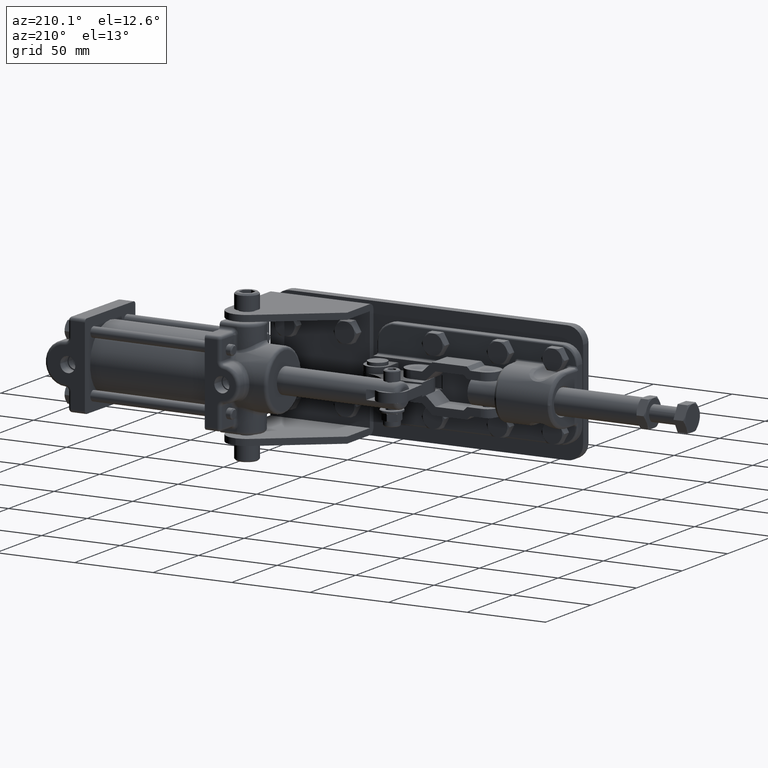
[diagram: clean part render]
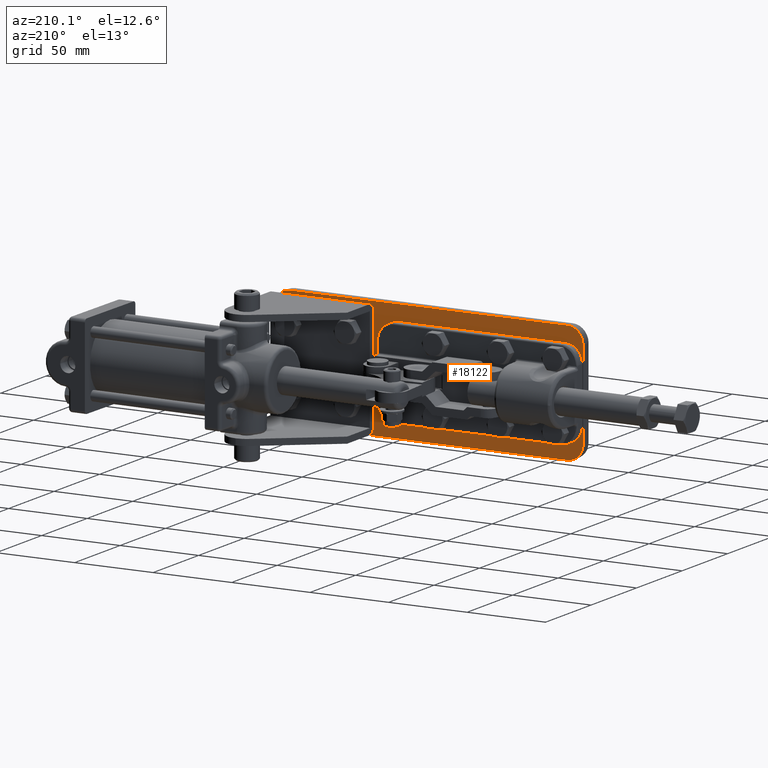
[diagram: same view with one face highlighted and labeled with its STEP entity id]
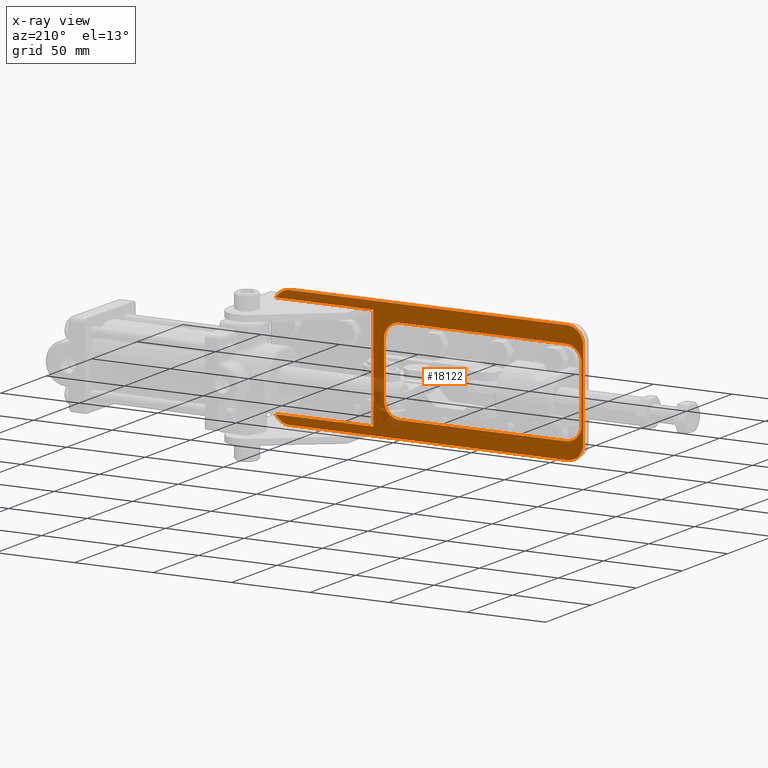
[diagram: x-ray of the same camera — body ghosted, the highlighted face saturated]
A machine part, auxiliary view. The second image highlights one B-rep face of the part: STEP entity #18122.
The next image is the same camera in x-ray: the body ghosted, the highlighted face saturated — about 5% of this face is hidden behind the body in this view.
In plain terms, the highlighted planar face has unit normal (0, 1, 0).
Its self-contained STEP definition (entity closure, byte-faithful):
#80 = DIRECTION ( 'NONE',  ( 0.0000000000000000000, 0.0000000000000000000, 1.000000000000000000 ) ) ;
#103 = LINE ( 'NONE', #14521, #6427 ) ;
#821 = DIRECTION ( 'NONE',  ( 0.0000000000000000000, 1.000000000000000000, -0.0000000000000000000 ) ) ;
#927 = DIRECTION ( 'NONE',  ( 0.0000000000000000000, -0.0000000000000000000, 1.000000000000000000 ) ) ;
#1125 = DIRECTION ( 'NONE',  ( 4.938714522353910200E-016, 0.0000000000000000000, 1.000000000000000000 ) ) ;
#1734 = ORIENTED_EDGE ( 'NONE', *, *, #2351, .T. ) ;
#1827 = EDGE_CURVE ( 'NONE', #13067, #2107, #10097, .T. ) ;
#1903 = CARTESIAN_POINT ( 'NONE',  ( 126.8000000000000000, 0.0000000000000000000, -17.49999999999998900 ) ) ;
#1996 = CARTESIAN_POINT ( 'NONE',  ( 195.7228378409781200, 0.0000000000000000000, -32.99000000000001600 ) ) ;
#2107 = VERTEX_POINT ( 'NONE', #11629 ) ;
#2351 = EDGE_CURVE ( 'NONE', #2107, #11342, #10482, .T. ) ;
#2769 = CARTESIAN_POINT ( 'NONE',  ( 11.00000000000000000, 0.0000000000000000000, -17.49999999999998900 ) ) ;
#2960 = ORIENTED_EDGE ( 'NONE', *, *, #26257, .T. ) ;
#3127 = CIRCLE ( 'NONE', #9132, 9.999999999999998200 ) ;
#3481 = VECTOR ( 'NONE', #8917, 1000.000000000000000 ) ;
#4372 = VERTEX_POINT ( 'NONE', #4971 ) ;
#4681 = VERTEX_POINT ( 'NONE', #22102 ) ;
#4827 = DIRECTION ( 'NONE',  ( 0.0000000000000000000, 1.000000000000000000, 0.0000000000000000000 ) ) ;
#4874 = ORIENTED_EDGE ( 'NONE', *, *, #23856, .T. ) ;
#4971 = CARTESIAN_POINT ( 'NONE',  ( 0.0000000000000000000, 0.0000000000000000000, -28.09999999999991600 ) ) ;
#5093 = DIRECTION ( 'NONE',  ( -1.000000000000000000, -0.0000000000000000000, -0.0000000000000000000 ) ) ;
#5098 = CARTESIAN_POINT ( 'NONE',  ( 10.40684079779927100, 0.0000000000000000000, 27.48239260702788300 ) ) ;
#5511 = DIRECTION ( 'NONE',  ( 1.000000000000000000, 0.0000000000000000000, 1.734723475976807500E-015 ) ) ;
#5833 = CIRCLE ( 'NONE', #6489, 9.999999999999998200 ) ;
#6250 = ORIENTED_EDGE ( 'NONE', *, *, #1827, .T. ) ;
#6326 = EDGE_CURVE ( 'NONE', #4372, #25800, #31525, .T. ) ;
#6427 = VECTOR ( 'NONE', #27799, 1000.000000000000000 ) ;
#6489 = AXIS2_PLACEMENT_3D ( 'NONE', #9000, #27654, #11692 ) ;
#6635 = ORIENTED_EDGE ( 'NONE', *, *, #19425, .T. ) ;
#7064 = VECTOR ( 'NONE', #5093, 1000.000000000000000 ) ;
#7226 = CARTESIAN_POINT ( 'NONE',  ( 197.0000000000000000, 2.602085213965210600E-015, -32.99000000000001600 ) ) ;
#7416 = ORIENTED_EDGE ( 'NONE', *, *, #33967, .T. ) ;
#7671 = VECTOR ( 'NONE', #24445, 1000.000000000000000 ) ;
#8408 = VECTOR ( 'NONE', #30991, 1000.000000000000000 ) ;
#8460 = CARTESIAN_POINT ( 'NONE',  ( 1.000000000000000900, 0.0000000000000000000, -28.49999999999998600 ) ) ;
#8917 = DIRECTION ( 'NONE',  ( 0.0000000000000000000, -1.224606353822377300E-016, 1.000000000000000000 ) ) ;
#9000 = CARTESIAN_POINT ( 'NONE',  ( 11.00000000000000000, 0.0000000000000000000, 17.50000000000000700 ) ) ;
#9045 = VERTEX_POINT ( 'NONE', #25761 ) ;
#9132 = AXIS2_PLACEMENT_3D ( 'NONE', #2769, #21478, #5511 ) ;
#9243 = LINE ( 'NONE', #15047, #8408 ) ;
#9297 = CARTESIAN_POINT ( 'NONE',  ( 116.8000000000000000, 0.0000000000000000000, -17.49999999999998900 ) ) ;
#9394 = DIRECTION ( 'NONE',  ( 1.000000000000000000, -0.0000000000000000000, -0.0000000000000000000 ) ) ;
#9727 = FACE_OUTER_BOUND ( 'NONE', #16878, .T. ) ;
#9752 = LINE ( 'NONE', #14764, #30191 ) ;
#10097 = LINE ( 'NONE', #26118, #24287 ) ;
#10129 = DIRECTION ( 'NONE',  ( -0.0000000000000000000, -0.0000000000000000000, 1.000000000000000000 ) ) ;
#10243 = EDGE_CURVE ( 'NONE', #11066, #14047, #15422, .T. ) ;
#10462 = EDGE_CURVE ( 'NONE', #20823, #13067, #33741, .T. ) ;
#10482 = CIRCLE ( 'NONE', #19265, 9.999999999999994700 ) ;
#11066 = VERTEX_POINT ( 'NONE', #1996 ) ;
#11089 = EDGE_CURVE ( 'NONE', #4681, #14771, #13636, .T. ) ;
#11189 = CARTESIAN_POINT ( 'NONE',  ( 127.8000000000000000, 0.0000000000000000000, 27.48239260702788300 ) ) ;
#11342 = VERTEX_POINT ( 'NONE', #26858 ) ;
#11629 = CARTESIAN_POINT ( 'NONE',  ( 126.8000000000000000, 0.0000000000000000000, 17.50000000000000700 ) ) ;
#11692 = DIRECTION ( 'NONE',  ( 1.000000000000000000, 0.0000000000000000000, 0.0000000000000000000 ) ) ;
#11898 = VERTEX_POINT ( 'NONE', #24966 ) ;
#11992 = DIRECTION ( 'NONE',  ( 1.000000000000000000, 0.0000000000000000000, -1.040834085586084800E-015 ) ) ;
#11997 = DIRECTION ( 'NONE',  ( 0.0000000000000000000, 1.000000000000000000, 0.0000000000000000000 ) ) ;
#12238 = CARTESIAN_POINT ( 'NONE',  ( 133.5000000000000000, 5.101572918449203600E-015, -32.99000000000001600 ) ) ;
#12428 = EDGE_CURVE ( 'NONE', #24944, #11898, #14777, .T. ) ;
#13067 = VERTEX_POINT ( 'NONE', #1903 ) ;
#13164 = ORIENTED_EDGE ( 'NONE', *, *, #17482, .T. ) ;
#13172 = CIRCLE ( 'NONE', #16492, 9.999999999999994700 ) ;
#13355 = CIRCLE ( 'NONE', #27766, 9.999999999999994700 ) ;
#13636 = CIRCLE ( 'NONE', #33883, 9.999999999999994700 ) ;
#13844 = DIRECTION ( 'NONE',  ( -1.000000000000000000, 0.0000000000000000000, 0.0000000000000000000 ) ) ;
#14047 = VERTEX_POINT ( 'NONE', #12238 ) ;
#14284 = AXIS2_PLACEMENT_3D ( 'NONE', #27954, #11997, #30640 ) ;
#14315 = EDGE_CURVE ( 'NONE', #11342, #16195, #20688, .T. ) ;
#14466 = ORIENTED_EDGE ( 'NONE', *, *, #12428, .T. ) ;
#14521 = CARTESIAN_POINT ( 'NONE',  ( 10.00000000000006400, 0.0000000000000000000, -38.09999999999998700 ) ) ;
#14764 = CARTESIAN_POINT ( 'NONE',  ( 127.8000000000000000, 0.0000000000000000000, -27.48239260702785800 ) ) ;
#14771 = VERTEX_POINT ( 'NONE', #31647 ) ;
#14777 = LINE ( 'NONE', #8460, #7671 ) ;
#14862 = VECTOR ( 'NONE', #1125, 1000.000000000000000 ) ;
#15047 = CARTESIAN_POINT ( 'NONE',  ( 10.00000000000009200, 0.0000000000000000000, 38.10000000000003000 ) ) ;
#15061 = ORIENTED_EDGE ( 'NONE', *, *, #33881, .F. ) ;
#15422 = LINE ( 'NONE', #7226, #28744 ) ;
#15792 = ORIENTED_EDGE ( 'NONE', *, *, #11089, .T. ) ;
#15888 = CARTESIAN_POINT ( 'NONE',  ( 133.5000000000000000, 0.0000000000000000000, 32.98999999999998100 ) ) ;
#16028 = CARTESIAN_POINT ( 'NONE',  ( 116.8000000000000000, 0.0000000000000000000, 17.50000000000000700 ) ) ;
#16112 = DIRECTION ( 'NONE',  ( 0.0000000000000000000, 1.000000000000000000, 0.0000000000000000000 ) ) ;
#16195 = VERTEX_POINT ( 'NONE', #5098 ) ;
#16492 = AXIS2_PLACEMENT_3D ( 'NONE', #32075, #16112, #80 ) ;
#16528 = EDGE_LOOP ( 'NONE', ( #25808, #31493, #6250, #1734, #31375, #30978, #14466, #17355 ) ) ;
#16828 = PLANE ( 'NONE',  #31943 ) ;
#16835 = CARTESIAN_POINT ( 'NONE',  ( 187.0000000000000000, 0.0000000000000000000, -28.09999999999999400 ) ) ;
#16852 = EDGE_CURVE ( 'NONE', #11898, #9045, #3127, .T. ) ;
#16878 = EDGE_LOOP ( 'NONE', ( #15792, #4874, #15061, #26027, #6635, #7416, #13164, #21665, #2960, #25568 ) ) ;
#16941 = DIRECTION ( 'NONE',  ( 0.0000000000000000000, 1.000000000000000000, 0.0000000000000000000 ) ) ;
#17355 = ORIENTED_EDGE ( 'NONE', *, *, #16852, .T. ) ;
#17482 = EDGE_CURVE ( 'NONE', #30611, #4372, #26894, .T. ) ;
#17736 = EDGE_CURVE ( 'NONE', #9045, #20823, #9752, .T. ) ;
#18122 = ADVANCED_FACE ( 'NONE', ( #29317, #9727 ), #16828, .T. ) ;
#18377 = CARTESIAN_POINT ( 'NONE',  ( 197.0000000000000000, -1.734723475976807100E-015, 32.98999999999998100 ) ) ;
#18693 = DIRECTION ( 'NONE',  ( 1.000000000000000000, 0.0000000000000000000, 0.0000000000000000000 ) ) ;
#19265 = AXIS2_PLACEMENT_3D ( 'NONE', #16028, #34682, #18693 ) ;
#19425 = EDGE_CURVE ( 'NONE', #11066, #28747, #13355, .T. ) ;
#19510 = DIRECTION ( 'NONE',  ( 0.0000000000000000000, 0.0000000000000000000, -1.000000000000000000 ) ) ;
#19531 = CARTESIAN_POINT ( 'NONE',  ( 133.5000000000000000, -3.469446951953614200E-015, 36.99999999999997900 ) ) ;
#20339 = CARTESIAN_POINT ( 'NONE',  ( 117.3931592022007800, 0.0000000000000000000, -27.48239260702785100 ) ) ;
#20688 = LINE ( 'NONE', #11189, #33178 ) ;
#20823 = VERTEX_POINT ( 'NONE', #20339 ) ;
#20829 = CARTESIAN_POINT ( 'NONE',  ( 187.0000000000000000, 0.0000000000000000000, 28.10000000000001600 ) ) ;
#21268 = LINE ( 'NONE', #18377, #7064 ) ;
#21478 = DIRECTION ( 'NONE',  ( -0.0000000000000000000, -1.000000000000000000, -0.0000000000000000000 ) ) ;
#21665 = ORIENTED_EDGE ( 'NONE', *, *, #6326, .T. ) ;
#22046 = VERTEX_POINT ( 'NONE', #22476 ) ;
#22102 = CARTESIAN_POINT ( 'NONE',  ( 186.9999999999999400, 0.0000000000000000000, 38.10000000000000900 ) ) ;
#22436 = CARTESIAN_POINT ( 'NONE',  ( 1.000000000000000900, 0.0000000000000000000, 17.50000000000000700 ) ) ;
#22476 = CARTESIAN_POINT ( 'NONE',  ( 10.00000000000009200, 0.0000000000000000000, 38.10000000000003000 ) ) ;
#22801 = VERTEX_POINT ( 'NONE', #15888 ) ;
#23236 = EDGE_CURVE ( 'NONE', #22046, #4681, #9243, .T. ) ;
#23507 = DIRECTION ( 'NONE',  ( 0.0000000000000000000, 0.0000000000000000000, 1.000000000000000000 ) ) ;
#23856 = EDGE_CURVE ( 'NONE', #14771, #22801, #21268, .T. ) ;
#24287 = VECTOR ( 'NONE', #10129, 1000.000000000000000 ) ;
#24445 = DIRECTION ( 'NONE',  ( 0.0000000000000000000, 0.0000000000000000000, -1.000000000000000000 ) ) ;
#24808 = LINE ( 'NONE', #19531, #3481 ) ;
#24944 = VERTEX_POINT ( 'NONE', #22436 ) ;
#24966 = CARTESIAN_POINT ( 'NONE',  ( 1.000000000000000000, 0.0000000000000000000, -17.49999999999998900 ) ) ;
#25568 = ORIENTED_EDGE ( 'NONE', *, *, #23236, .T. ) ;
#25761 = CARTESIAN_POINT ( 'NONE',  ( 10.40684079779919500, 0.0000000000000000000, -27.48239260702785800 ) ) ;
#25800 = VERTEX_POINT ( 'NONE', #28399 ) ;
#25808 = ORIENTED_EDGE ( 'NONE', *, *, #17736, .T. ) ;
#26027 = ORIENTED_EDGE ( 'NONE', *, *, #10243, .F. ) ;
#26118 = CARTESIAN_POINT ( 'NONE',  ( 126.8000000000000000, 0.0000000000000000000, 17.50000000000000700 ) ) ;
#26257 = EDGE_CURVE ( 'NONE', #25800, #22046, #13172, .T. ) ;
#26526 = CARTESIAN_POINT ( 'NONE',  ( 186.9999999999999400, 0.0000000000000000000, -38.09999999999999400 ) ) ;
#26858 = CARTESIAN_POINT ( 'NONE',  ( 117.3931592022007400, 0.0000000000000000000, 27.48239260702788300 ) ) ;
#26894 = CIRCLE ( 'NONE', #14284, 10.00000000000000200 ) ;
#27654 = DIRECTION ( 'NONE',  ( -0.0000000000000000000, -1.000000000000000000, -0.0000000000000000000 ) ) ;
#27766 = AXIS2_PLACEMENT_3D ( 'NONE', #16835, #821, #19510 ) ;
#27799 = DIRECTION ( 'NONE',  ( -1.000000000000000000, -0.0000000000000000000, 3.920279041755499000E-017 ) ) ;
#27948 = DIRECTION ( 'NONE',  ( -0.0000000000000000000, -1.000000000000000000, -0.0000000000000000000 ) ) ;
#27954 = CARTESIAN_POINT ( 'NONE',  ( 10.00000000000000900, 0.0000000000000000000, -28.09999999999998700 ) ) ;
#28399 = CARTESIAN_POINT ( 'NONE',  ( 2.775557561562891400E-014, 0.0000000000000000000, 28.09999999999995900 ) ) ;
#28744 = VECTOR ( 'NONE', #31240, 1000.000000000000000 ) ;
#28747 = VERTEX_POINT ( 'NONE', #26526 ) ;
#29010 = EDGE_CURVE ( 'NONE', #16195, #24944, #5833, .T. ) ;
#29317 = FACE_BOUND ( 'NONE', #16528, .T. ) ;
#30191 = VECTOR ( 'NONE', #9394, 1000.000000000000000 ) ;
#30417 = CARTESIAN_POINT ( 'NONE',  ( 0.0000000000000000000, 0.0000000000000000000, -28.09999999999991600 ) ) ;
#30590 = CARTESIAN_POINT ( 'NONE',  ( 10.00000000000006400, 0.0000000000000000000, -38.09999999999998700 ) ) ;
#30611 = VERTEX_POINT ( 'NONE', #30590 ) ;
#30640 = DIRECTION ( 'NONE',  ( 0.0000000000000000000, 0.0000000000000000000, 1.000000000000000000 ) ) ;
#30978 = ORIENTED_EDGE ( 'NONE', *, *, #29010, .T. ) ;
#30991 = DIRECTION ( 'NONE',  ( 1.000000000000000000, 0.0000000000000000000, -1.176083712526649900E-016 ) ) ;
#31240 = DIRECTION ( 'NONE',  ( -1.000000000000000000, -0.0000000000000000000, -0.0000000000000000000 ) ) ;
#31375 = ORIENTED_EDGE ( 'NONE', *, *, #14315, .T. ) ;
#31493 = ORIENTED_EDGE ( 'NONE', *, *, #10462, .T. ) ;
#31525 = LINE ( 'NONE', #30417, #14862 ) ;
#31647 = CARTESIAN_POINT ( 'NONE',  ( 195.7228378409781700, 0.0000000000000000000, 32.98999999999998100 ) ) ;
#31943 = AXIS2_PLACEMENT_3D ( 'NONE', #32918, #16941, #927 ) ;
#32075 = CARTESIAN_POINT ( 'NONE',  ( 10.00000000000002300, 0.0000000000000000000, 28.10000000000002600 ) ) ;
#32918 = CARTESIAN_POINT ( 'NONE',  ( 10.00000000000000900, 0.0000000000000000000, -28.09999999999998700 ) ) ;
#32966 = AXIS2_PLACEMENT_3D ( 'NONE', #9297, #27948, #11992 ) ;
#33178 = VECTOR ( 'NONE', #13844, 1000.000000000000000 ) ;
#33741 = CIRCLE ( 'NONE', #32966, 9.999999999999994700 ) ;
#33881 = EDGE_CURVE ( 'NONE', #14047, #22801, #24808, .T. ) ;
#33883 = AXIS2_PLACEMENT_3D ( 'NONE', #20829, #4827, #23507 ) ;
#33967 = EDGE_CURVE ( 'NONE', #28747, #30611, #103, .T. ) ;
#34682 = DIRECTION ( 'NONE',  ( -0.0000000000000000000, -1.000000000000000000, -0.0000000000000000000 ) ) ;